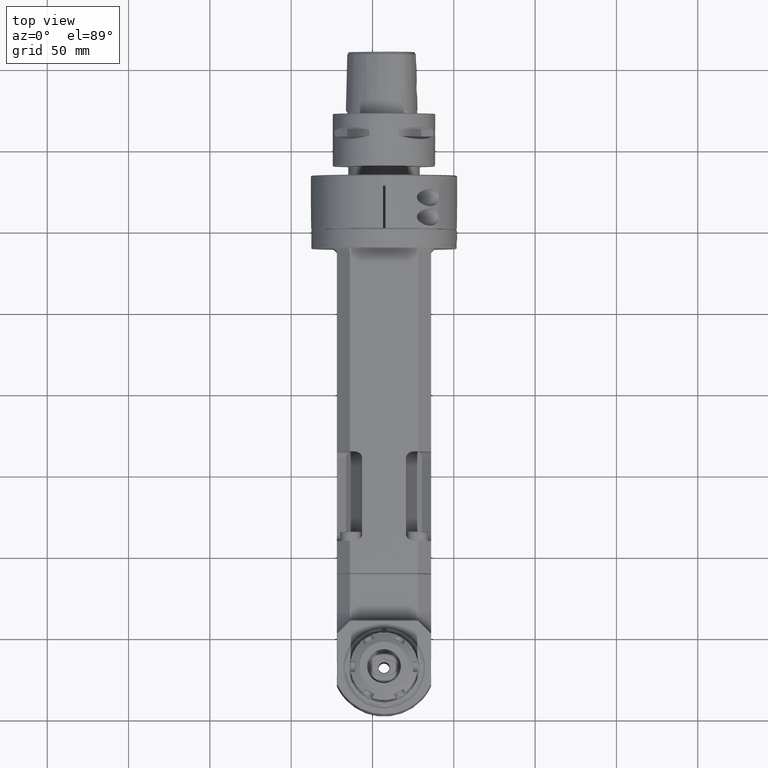
[diagram: clean part render]
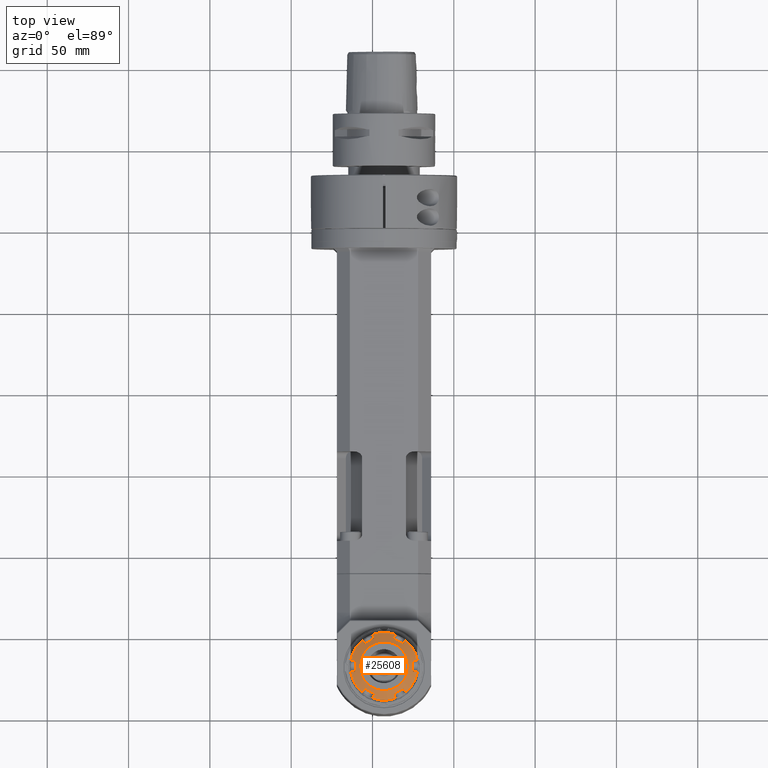
[diagram: same view with one face highlighted and labeled with its STEP entity id]
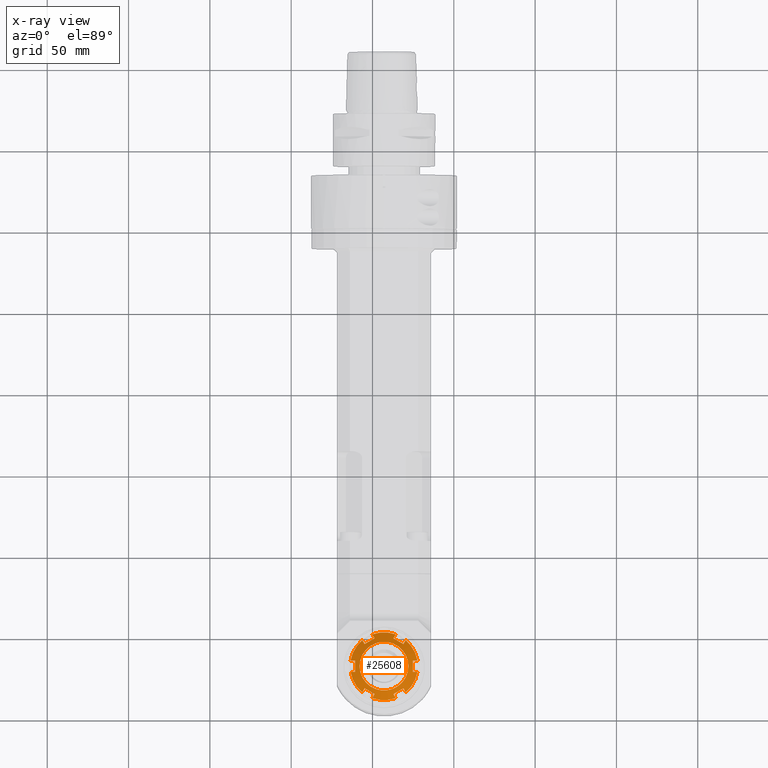
[diagram: x-ray of the same camera — body ghosted, the highlighted face saturated]
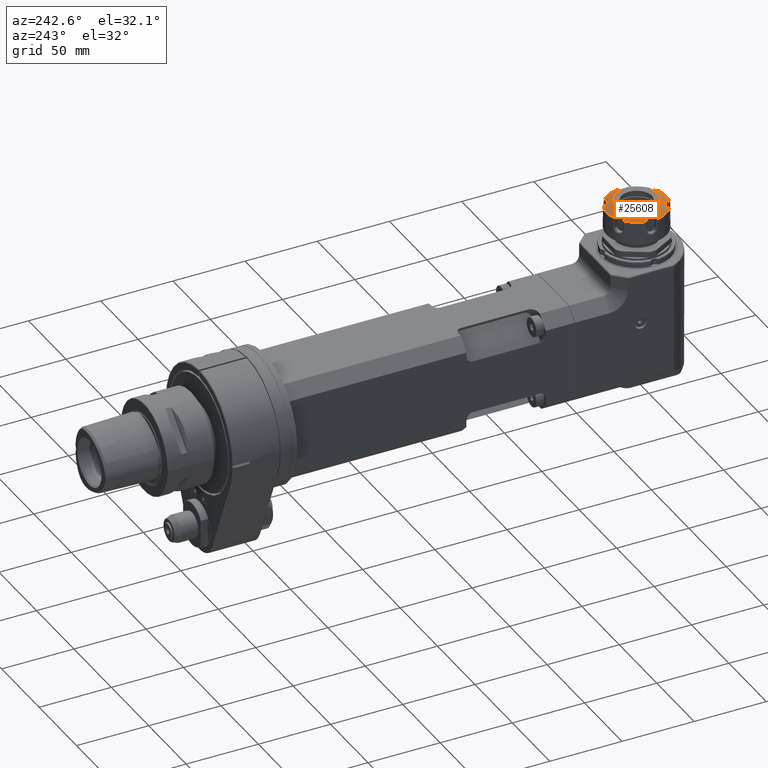
[diagram: same view with one face highlighted and labeled with its STEP entity id]
A machine part, top view. The second image highlights one B-rep face of the part: STEP entity #25608.
The next image is the same camera in x-ray: the body ghosted, the highlighted face saturated — about 0% of this face is hidden behind the body in this view.
A second angle (auxiliary view) of the same face is appended — the face is thin or edge-on in the first view.
In plain terms, the highlighted conical surface has half-angle 60 deg.
Its self-contained STEP definition (entity closure, byte-faithful):
#357=(
BOUNDED_CURVE()
B_SPLINE_CURVE(2,(#44121,#44122,#44123),.UNSPECIFIED.,.F.,.F.)
B_SPLINE_CURVE_WITH_KNOTS((3,3),(5.70939541777021,5.71480727411025),
 .UNSPECIFIED.)
CURVE()
GEOMETRIC_REPRESENTATION_ITEM()
RATIONAL_B_SPLINE_CURVE((1.38705520009317,1.38617916635966,1.38530112410136))
REPRESENTATION_ITEM('')
);
#358=(
BOUNDED_CURVE()
B_SPLINE_CURVE(2,(#44127,#44128,#44129),.UNSPECIFIED.,.F.,.F.)
B_SPLINE_CURVE_WITH_KNOTS((3,3),(0.983136933448719,0.988548446117283),
 .UNSPECIFIED.)
CURVE()
GEOMETRIC_REPRESENTATION_ITEM()
RATIONAL_B_SPLINE_CURVE((1.38530112341754,1.38617910991716,1.38705508814709))
REPRESENTATION_ITEM('')
);
#359=(
BOUNDED_CURVE()
B_SPLINE_CURVE(2,(#44156,#44157,#44158),.UNSPECIFIED.,.F.,.F.)
B_SPLINE_CURVE_WITH_KNOTS((3,3),(5.70939569852921,5.71480726945877),
 .UNSPECIFIED.)
CURVE()
GEOMETRIC_REPRESENTATION_ITEM()
RATIONAL_B_SPLINE_CURVE((1.38705510692146,1.38617911928225,1.3853011233301))
REPRESENTATION_ITEM('')
);
#360=(
BOUNDED_CURVE()
B_SPLINE_CURVE(2,(#44162,#44163,#44164),.UNSPECIFIED.,.F.,.F.)
B_SPLINE_CURVE_WITH_KNOTS((3,3),(0.983136932263362,0.988548410212522),
 .UNSPECIFIED.)
CURVE()
GEOMETRIC_REPRESENTATION_ITEM()
RATIONAL_B_SPLINE_CURVE((1.3853011229098,1.38617910377642,1.38705507639911))
REPRESENTATION_ITEM('')
);
#361=(
BOUNDED_CURVE()
B_SPLINE_CURVE(2,(#44191,#44192,#44193),.UNSPECIFIED.,.F.,.F.)
B_SPLINE_CURVE_WITH_KNOTS((3,3),(5.70939596718502,5.7148072706739),
 .UNSPECIFIED.)
CURVE()
GEOMETRIC_REPRESENTATION_ITEM()
RATIONAL_B_SPLINE_CURVE((1.38705502054067,1.38617907609367,1.38530112353224))
REPRESENTATION_ITEM('')
);
#362=(
BOUNDED_CURVE()
B_SPLINE_CURVE(2,(#44197,#44198,#44199),.UNSPECIFIED.,.F.,.F.)
B_SPLINE_CURVE_WITH_KNOTS((3,3),(0.983136935438427,0.988548413391495),
 .UNSPECIFIED.)
CURVE()
GEOMETRIC_REPRESENTATION_ITEM()
RATIONAL_B_SPLINE_CURVE((1.38530112426497,1.38617910513215,1.38705507775541))
REPRESENTATION_ITEM('')
);
#363=(
BOUNDED_CURVE()
B_SPLINE_CURVE(2,(#44229,#44230,#44231),.UNSPECIFIED.,.F.,.F.)
B_SPLINE_CURVE_WITH_KNOTS((3,3),(-0.988548309295833,-0.983136935087002),
 .UNSPECIFIED.)
CURVE()
GEOMETRIC_REPRESENTATION_ITEM()
RATIONAL_B_SPLINE_CURVE((1.38705504402038,1.38617908815201,1.38530112411672))
REPRESENTATION_ITEM('')
);
#364=(
BOUNDED_CURVE()
B_SPLINE_CURVE(2,(#44235,#44236,#44237),.UNSPECIFIED.,.F.,.F.)
B_SPLINE_CURVE_WITH_KNOTS((3,3),(0.983136933448722,0.988548446117286),
 .UNSPECIFIED.)
CURVE()
GEOMETRIC_REPRESENTATION_ITEM()
RATIONAL_B_SPLINE_CURVE((1.38530112341754,1.38617910991716,1.38705508814709))
REPRESENTATION_ITEM('')
);
#365=(
BOUNDED_CURVE()
B_SPLINE_CURVE(2,(#44264,#44265,#44266),.UNSPECIFIED.,.F.,.F.)
B_SPLINE_CURVE_WITH_KNOTS((3,3),(5.70939579745378,5.71480726945876),
 .UNSPECIFIED.)
CURVE()
GEOMETRIC_REPRESENTATION_ITEM()
RATIONAL_B_SPLINE_CURVE((1.38705507489501,1.38617910323232,1.38530112333011))
REPRESENTATION_ITEM('')
);
#366=(
BOUNDED_CURVE()
B_SPLINE_CURVE(2,(#44270,#44271,#44272),.UNSPECIFIED.,.F.,.F.)
B_SPLINE_CURVE_WITH_KNOTS((3,3),(0.983136932263368,0.98854841021252),
 .UNSPECIFIED.)
CURVE()
GEOMETRIC_REPRESENTATION_ITEM()
RATIONAL_B_SPLINE_CURVE((1.3853011229098,1.38617910377642,1.38705507639911))
REPRESENTATION_ITEM('')
);
#367=(
BOUNDED_CURVE()
B_SPLINE_CURVE(2,(#44299,#44300,#44301),.UNSPECIFIED.,.F.,.F.)
B_SPLINE_CURVE_WITH_KNOTS((3,3),(5.70939579867007,5.71480727067392),
 .UNSPECIFIED.)
CURVE()
GEOMETRIC_REPRESENTATION_ITEM()
RATIONAL_B_SPLINE_CURVE((1.38705507509675,1.38617910343425,1.38530112353223))
REPRESENTATION_ITEM('')
);
#368=(
BOUNDED_CURVE()
B_SPLINE_CURVE(2,(#44305,#44306,#44307),.UNSPECIFIED.,.F.,.F.)
B_SPLINE_CURVE_WITH_KNOTS((3,3),(0.983136935438424,0.98854841339149),
 .UNSPECIFIED.)
CURVE()
GEOMETRIC_REPRESENTATION_ITEM()
RATIONAL_B_SPLINE_CURVE((1.38530112426498,1.38617910513215,1.38705507775541))
REPRESENTATION_ITEM('')
);
#1286=CONICAL_SURFACE('',#27620,17.925,1.0471975511966);
#1846=B_SPLINE_CURVE_WITH_KNOTS('',3,(#44107,#44108,#44109,#44110,#44111,
#44112),.UNSPECIFIED.,.F.,.F.,(4,2,4),(1.14375153860576E-6,0.179910383429149,
0.355926342050331),.UNSPECIFIED.);
#1847=B_SPLINE_CURVE_WITH_KNOTS('',3,(#44114,#44115,#44116,#44117,#44118,
#44119),.UNSPECIFIED.,.F.,.F.,(4,2,4),(8.81207047935609E-6,0.161407624822591,
0.317184349461019),.UNSPECIFIED.);
#1848=B_SPLINE_CURVE_WITH_KNOTS('',3,(#44131,#44132,#44133,#44134,#44135,
#44136),.UNSPECIFIED.,.F.,.F.,(4,2,4),(9.99999962826911E-7,0.154867093347387,
0.315885764028571),.UNSPECIFIED.);
#1849=B_SPLINE_CURVE_WITH_KNOTS('',3,(#44138,#44139,#44140,#44141,#44142,
#44143,#44144,#44145,#44146,#44147),.UNSPECIFIED.,.F.,.F.,(4,2,2,2,4),(6.92223744810711E-6,
0.178809486688371,0.355603981512874,0.53169273900508,0.711222387432045),
 .UNSPECIFIED.);
#1850=B_SPLINE_CURVE_WITH_KNOTS('',3,(#44149,#44150,#44151,#44152,#44153,
#44154),.UNSPECIFIED.,.F.,.F.,(4,2,4),(3.03279531370215E-7,0.161653604121978,
0.317218719665192),.UNSPECIFIED.);
#1851=B_SPLINE_CURVE_WITH_KNOTS('',3,(#44166,#44167,#44168,#44169,#44170,
#44171),.UNSPECIFIED.,.F.,.F.,(4,2,4),(9.99999957859794E-7,0.154834427717964,
0.315881929483001),.UNSPECIFIED.);
#1852=B_SPLINE_CURVE_WITH_KNOTS('',3,(#44173,#44174,#44175,#44176,#44177,
#44178,#44179,#44180,#44181,#44182),.UNSPECIFIED.,.F.,.F.,(4,2,2,2,4),(1.00662982158479E-5,
0.179957851512204,0.356455199662112,0.533654527475972,0.712877035619748),
 .UNSPECIFIED.);
#1853=B_SPLINE_CURVE_WITH_KNOTS('',3,(#44184,#44185,#44186,#44187,#44188,
#44189),.UNSPECIFIED.,.F.,.F.,(4,2,4),(4.20002389914939E-6,0.161873464104651,
0.317243653025037),.UNSPECIFIED.);
#1854=B_SPLINE_CURVE_WITH_KNOTS('',3,(#44201,#44202,#44203,#44204,#44205,
#44206),.UNSPECIFIED.,.F.,.F.,(4,2,4),(9.99999962586484E-7,0.154834278991024,
0.31586918147058),.UNSPECIFIED.);
#1855=B_SPLINE_CURVE_WITH_KNOTS('',3,(#44208,#44209,#44210,#44211,#44212,
#44213),.UNSPECIFIED.,.F.,.F.,(4,2,4),(7.37356202526217E-6,0.176677353733529,
0.35585008997588),.UNSPECIFIED.);
#1856=B_SPLINE_CURVE_WITH_KNOTS('',3,(#44215,#44216,#44217,#44218,#44219,
#44220),.UNSPECIFIED.,.F.,.F.,(4,2,4),(1.14375116578461E-6,0.179910311923236,
0.355926048339165),.UNSPECIFIED.);
#1857=B_SPLINE_CURVE_WITH_KNOTS('',3,(#44222,#44223,#44224,#44225,#44226,
#44227),.UNSPECIFIED.,.F.,.F.,(4,2,4),(8.79176471706862E-6,0.161813928260173,
0.317235617479427),.UNSPECIFIED.);
#1858=B_SPLINE_CURVE_WITH_KNOTS('',3,(#44239,#44240,#44241,#44242,#44243,
#44244),.UNSPECIFIED.,.F.,.F.,(4,2,4),(9.99999957048605E-7,0.15486760308666,
0.315885764034301),.UNSPECIFIED.);
#1859=B_SPLINE_CURVE_WITH_KNOTS('',3,(#44246,#44247,#44248,#44249,#44250,
#44251,#44252,#44253,#44254,#44255),.UNSPECIFIED.,.F.,.F.,(4,2,2,2,4),(6.92223747908899E-6,
0.178809479762374,0.355603967703132,0.53169273445983,0.711222336652775),
 .UNSPECIFIED.);
#1860=B_SPLINE_CURVE_WITH_KNOTS('',3,(#44257,#44258,#44259,#44260,#44261,
#44262),.UNSPECIFIED.,.F.,.F.,(4,2,4),(3.24168874490214E-7,0.161736173456584,
0.317229356150221),.UNSPECIFIED.);
#1861=B_SPLINE_CURVE_WITH_KNOTS('',3,(#44274,#44275,#44276,#44277,#44278,
#44279),.UNSPECIFIED.,.F.,.F.,(4,2,4),(9.99999966948027E-7,0.154833917855417,
0.315881929440825),.UNSPECIFIED.);
#1862=B_SPLINE_CURVE_WITH_KNOTS('',3,(#44281,#44282,#44283,#44284,#44285,
#44286,#44287,#44288,#44289,#44290),.UNSPECIFIED.,.F.,.F.,(4,2,2,2,4),(1.00662982145405E-5,
0.179957863475221,0.3564552231601,0.533654528610631,0.712877122017822),
 .UNSPECIFIED.);
#1863=B_SPLINE_CURVE_WITH_KNOTS('',3,(#44292,#44293,#44294,#44295,#44296,
#44297),.UNSPECIFIED.,.F.,.F.,(4,2,4),(4.15166819956952E-6,0.161732285258469,
0.317225245341145),.UNSPECIFIED.);
#1864=B_SPLINE_CURVE_WITH_KNOTS('',3,(#44309,#44310,#44311,#44312,#44313,
#44314),.UNSPECIFIED.,.F.,.F.,(4,2,4),(9.99999961472123E-7,0.154834788794399,
0.315869181453126),.UNSPECIFIED.);
#1865=B_SPLINE_CURVE_WITH_KNOTS('',3,(#44315,#44316,#44317,#44318,#44319,
#44320),.UNSPECIFIED.,.F.,.F.,(4,2,4),(7.37356203564457E-6,0.176677353733487,
0.355850089975761),.UNSPECIFIED.);
#2888=FACE_OUTER_BOUND('',#4509,.T.);
#4509=EDGE_LOOP('',(#20926,#20927,#20928,#20929,#20930,#20931,#20932,#20933,
#20934,#20935,#20936,#20937,#20938,#20939,#20940,#20941,#20942,#20943,#20944,
#20945,#20946,#20947,#20948,#20949,#20950,#20951,#20952,#20953,#20954,#20955,
#20956,#20957,#20958,#20959,#20960,#20961,#20962,#20963,#20964,#20965,#20966));
#5901=CIRCLE('',#27619,15.);
#5902=CIRCLE('',#27621,20.85);
#5903=CIRCLE('',#27622,20.85);
#5904=CIRCLE('',#27623,20.85);
#5905=CIRCLE('',#27624,20.85);
#5906=CIRCLE('',#27625,20.85);
#5907=CIRCLE('',#27626,20.85);
#7626=LINE('',#44321,#9664);
#9664=VECTOR('',#32492,17.925);
#11871=VERTEX_POINT('',#44102);
#11872=VERTEX_POINT('',#44105);
#11873=VERTEX_POINT('',#44106);
#11874=VERTEX_POINT('',#44113);
#11875=VERTEX_POINT('',#44120);
#11876=VERTEX_POINT('',#44124);
#11877=VERTEX_POINT('',#44126);
#11878=VERTEX_POINT('',#44130);
#11879=VERTEX_POINT('',#44137);
#11880=VERTEX_POINT('',#44148);
#11881=VERTEX_POINT('',#44155);
#11882=VERTEX_POINT('',#44159);
#11883=VERTEX_POINT('',#44161);
#11884=VERTEX_POINT('',#44165);
#11885=VERTEX_POINT('',#44172);
#11886=VERTEX_POINT('',#44183);
#11887=VERTEX_POINT('',#44190);
#11888=VERTEX_POINT('',#44194);
#11889=VERTEX_POINT('',#44196);
#11890=VERTEX_POINT('',#44200);
#11891=VERTEX_POINT('',#44207);
#11892=VERTEX_POINT('',#44214);
#11893=VERTEX_POINT('',#44221);
#11894=VERTEX_POINT('',#44228);
#11895=VERTEX_POINT('',#44232);
#11896=VERTEX_POINT('',#44234);
#11897=VERTEX_POINT('',#44238);
#11898=VERTEX_POINT('',#44245);
#11899=VERTEX_POINT('',#44256);
#11900=VERTEX_POINT('',#44263);
#11901=VERTEX_POINT('',#44267);
#11902=VERTEX_POINT('',#44269);
#11903=VERTEX_POINT('',#44273);
#11904=VERTEX_POINT('',#44280);
#11905=VERTEX_POINT('',#44291);
#11906=VERTEX_POINT('',#44298);
#11907=VERTEX_POINT('',#44302);
#11908=VERTEX_POINT('',#44304);
#11909=VERTEX_POINT('',#44308);
#15077=EDGE_CURVE('',#11871,#11871,#5901,.T.);
#15078=EDGE_CURVE('',#11872,#11873,#1846,.T.);
#15079=EDGE_CURVE('',#11873,#11874,#1847,.T.);
#15080=EDGE_CURVE('',#11874,#11875,#357,.T.);
#15081=EDGE_CURVE('',#11875,#11876,#5902,.T.);
#15082=EDGE_CURVE('',#11876,#11877,#358,.T.);
#15083=EDGE_CURVE('',#11877,#11878,#1848,.T.);
#15084=EDGE_CURVE('',#11878,#11879,#1849,.T.);
#15085=EDGE_CURVE('',#11879,#11880,#1850,.T.);
#15086=EDGE_CURVE('',#11880,#11881,#359,.T.);
#15087=EDGE_CURVE('',#11881,#11882,#5903,.T.);
#15088=EDGE_CURVE('',#11882,#11883,#360,.T.);
#15089=EDGE_CURVE('',#11883,#11884,#1851,.T.);
#15090=EDGE_CURVE('',#11884,#11885,#1852,.T.);
#15091=EDGE_CURVE('',#11885,#11886,#1853,.T.);
#15092=EDGE_CURVE('',#11886,#11887,#361,.T.);
#15093=EDGE_CURVE('',#11887,#11888,#5904,.T.);
#15094=EDGE_CURVE('',#11888,#11889,#362,.T.);
#15095=EDGE_CURVE('',#11889,#11890,#1854,.T.);
#15096=EDGE_CURVE('',#11890,#11891,#1855,.T.);
#15097=EDGE_CURVE('',#11891,#11892,#1856,.T.);
#15098=EDGE_CURVE('',#11892,#11893,#1857,.T.);
#15099=EDGE_CURVE('',#11893,#11894,#363,.T.);
#15100=EDGE_CURVE('',#11895,#11894,#5905,.T.);
#15101=EDGE_CURVE('',#11895,#11896,#364,.T.);
#15102=EDGE_CURVE('',#11896,#11897,#1858,.T.);
#15103=EDGE_CURVE('',#11897,#11898,#1859,.T.);
#15104=EDGE_CURVE('',#11898,#11899,#1860,.T.);
#15105=EDGE_CURVE('',#11899,#11900,#365,.T.);
#15106=EDGE_CURVE('',#11901,#11900,#5906,.T.);
#15107=EDGE_CURVE('',#11901,#11902,#366,.T.);
#15108=EDGE_CURVE('',#11902,#11903,#1861,.T.);
#15109=EDGE_CURVE('',#11903,#11904,#1862,.T.);
#15110=EDGE_CURVE('',#11904,#11905,#1863,.T.);
#15111=EDGE_CURVE('',#11905,#11906,#367,.T.);
#15112=EDGE_CURVE('',#11907,#11906,#5907,.T.);
#15113=EDGE_CURVE('',#11907,#11908,#368,.T.);
#15114=EDGE_CURVE('',#11908,#11909,#1864,.T.);
#15115=EDGE_CURVE('',#11909,#11872,#1865,.T.);
#15116=EDGE_CURVE('',#11872,#11871,#7626,.T.);
#20926=ORIENTED_EDGE('',*,*,#15078,.T.);
#20927=ORIENTED_EDGE('',*,*,#15079,.T.);
#20928=ORIENTED_EDGE('',*,*,#15080,.T.);
#20929=ORIENTED_EDGE('',*,*,#15081,.T.);
#20930=ORIENTED_EDGE('',*,*,#15082,.T.);
#20931=ORIENTED_EDGE('',*,*,#15083,.T.);
#20932=ORIENTED_EDGE('',*,*,#15084,.T.);
#20933=ORIENTED_EDGE('',*,*,#15085,.T.);
#20934=ORIENTED_EDGE('',*,*,#15086,.T.);
#20935=ORIENTED_EDGE('',*,*,#15087,.T.);
#20936=ORIENTED_EDGE('',*,*,#15088,.T.);
#20937=ORIENTED_EDGE('',*,*,#15089,.T.);
#20938=ORIENTED_EDGE('',*,*,#15090,.T.);
#20939=ORIENTED_EDGE('',*,*,#15091,.T.);
#20940=ORIENTED_EDGE('',*,*,#15092,.T.);
#20941=ORIENTED_EDGE('',*,*,#15093,.T.);
#20942=ORIENTED_EDGE('',*,*,#15094,.T.);
#20943=ORIENTED_EDGE('',*,*,#15095,.T.);
#20944=ORIENTED_EDGE('',*,*,#15096,.T.);
#20945=ORIENTED_EDGE('',*,*,#15097,.T.);
#20946=ORIENTED_EDGE('',*,*,#15098,.T.);
#20947=ORIENTED_EDGE('',*,*,#15099,.T.);
#20948=ORIENTED_EDGE('',*,*,#15100,.F.);
#20949=ORIENTED_EDGE('',*,*,#15101,.T.);
#20950=ORIENTED_EDGE('',*,*,#15102,.T.);
#20951=ORIENTED_EDGE('',*,*,#15103,.T.);
#20952=ORIENTED_EDGE('',*,*,#15104,.T.);
#20953=ORIENTED_EDGE('',*,*,#15105,.T.);
#20954=ORIENTED_EDGE('',*,*,#15106,.F.);
#20955=ORIENTED_EDGE('',*,*,#15107,.T.);
#20956=ORIENTED_EDGE('',*,*,#15108,.T.);
#20957=ORIENTED_EDGE('',*,*,#15109,.T.);
#20958=ORIENTED_EDGE('',*,*,#15110,.T.);
#20959=ORIENTED_EDGE('',*,*,#15111,.T.);
#20960=ORIENTED_EDGE('',*,*,#15112,.F.);
#20961=ORIENTED_EDGE('',*,*,#15113,.T.);
#20962=ORIENTED_EDGE('',*,*,#15114,.T.);
#20963=ORIENTED_EDGE('',*,*,#15115,.T.);
#20964=ORIENTED_EDGE('',*,*,#15116,.T.);
#20965=ORIENTED_EDGE('',*,*,#15077,.F.);
#20966=ORIENTED_EDGE('',*,*,#15116,.F.);
#25608=ADVANCED_FACE('',(#2888),#1286,.T.);
#27619=AXIS2_PLACEMENT_3D('',#44103,#32476,#32477);
#27620=AXIS2_PLACEMENT_3D('',#44104,#32478,#32479);
#27621=AXIS2_PLACEMENT_3D('',#44125,#32480,#32481);
#27622=AXIS2_PLACEMENT_3D('',#44160,#32482,#32483);
#27623=AXIS2_PLACEMENT_3D('',#44195,#32484,#32485);
#27624=AXIS2_PLACEMENT_3D('',#44233,#32486,#32487);
#27625=AXIS2_PLACEMENT_3D('',#44268,#32488,#32489);
#27626=AXIS2_PLACEMENT_3D('',#44303,#32490,#32491);
#32476=DIRECTION('center_axis',(0.,0.,1.));
#32477=DIRECTION('ref_axis',(-1.,0.,0.));
#32478=DIRECTION('center_axis',(0.,0.,-1.));
#32479=DIRECTION('ref_axis',(1.,0.,0.));
#32480=DIRECTION('center_axis',(0.,0.,1.));
#32481=DIRECTION('ref_axis',(-0.985098665484215,-0.171990171990203,0.));
#32482=DIRECTION('center_axis',(0.,0.,1.));
#32483=DIRECTION('ref_axis',(-0.343601474597386,-0.939115555538562,0.));
#32484=DIRECTION('center_axis',(0.,0.,1.));
#32485=DIRECTION('ref_axis',(0.64149719088688,-0.767125383548376,0.));
#32486=DIRECTION('center_axis',(0.,0.,-1.));
#32487=DIRECTION('ref_axis',(0.64149719088688,0.767125383548376,0.));
#32488=DIRECTION('center_axis',(0.,0.,-1.));
#32489=DIRECTION('ref_axis',(-0.343601474597386,0.939115555538562,0.));
#32490=DIRECTION('center_axis',(0.,0.,-1.));
#32491=DIRECTION('ref_axis',(-0.985098665484215,0.171990171990203,0.));
#32492=DIRECTION('',(0.866025403784439,-1.06057523872491E-16,0.5));
#44102=CARTESIAN_POINT('',(-15.,-270.,81.5));
#44103=CARTESIAN_POINT('Origin',(1.07769018325E-14,-270.,81.5));
#44104=CARTESIAN_POINT('Origin',(1.098371400405E-14,-270.,79.81125046262));
#44105=CARTESIAN_POINT('',(-17.7499759302508,-269.999999999377,79.9122952022875));
#44106=CARTESIAN_POINT('',(-17.7451938323253,-273.548982385897,79.7121731917694));
#44107=CARTESIAN_POINT('Ctrl Pts',(-17.7499613073417,-269.999999997554,
79.9123090989449));
#44108=CARTESIAN_POINT('Ctrl Pts',(-17.7498288833303,-270.599697424197,
79.9123855540312));
#44109=CARTESIAN_POINT('Ctrl Pts',(-17.7494570443031,-271.197866956121,
79.8950496231943));
#44110=CARTESIAN_POINT('Ctrl Pts',(-17.7479173420765,-272.382220291498,
79.8270730234195));
#44111=CARTESIAN_POINT('Ctrl Pts',(-17.7467572838113,-272.966025220027,
79.7772939535517));
#44112=CARTESIAN_POINT('Ctrl Pts',(-17.745193833205,-273.548982385802,79.7121731909014));
#44113=CARTESIAN_POINT('',(-20.50285796603,-273.5426307849,78.14751888366));
#44114=CARTESIAN_POINT('Ctrl Pts',(-17.7451938321905,-273.548982385286,
79.7121731915341));
#44115=CARTESIAN_POINT('Ctrl Pts',(-18.2134298997006,-273.547717301738,
79.447229796981));
#44116=CARTESIAN_POINT('Ctrl Pts',(-18.6818084951763,-273.546580073953,
79.1817785715612));
#44117=CARTESIAN_POINT('Ctrl Pts',(-19.6009683606743,-273.544511921059,
78.6601872881725));
#44118=CARTESIAN_POINT('Ctrl Pts',(-20.0531855959071,-273.543571985804,
78.4032539928445));
#44119=CARTESIAN_POINT('Ctrl Pts',(-20.5028579660321,-273.542630784904,
78.1475188836637));
#44120=CARTESIAN_POINT('',(-20.53930717535,-273.585995086,78.12250092524));
#44121=CARTESIAN_POINT('Ctrl Pts',(-20.5028579663332,-273.542630785323,
78.1475188834513));
#44122=CARTESIAN_POINT('Ctrl Pts',(-20.5210636132778,-273.564290381505,
78.1350321422293));
#44123=CARTESIAN_POINT('Ctrl Pts',(-20.5393071756607,-273.585995086388,
78.1225009250223));
#44124=CARTESIAN_POINT('',(-13.37521642999,-285.994564247,78.12250092524));
#44125=CARTESIAN_POINT('Origin',(1.11905261756E-14,-270.,78.12250092524));
#44126=CARTESIAN_POINT('',(-13.31944077521,-285.9846810829,78.14751729878));
#44127=CARTESIAN_POINT('Ctrl Pts',(-13.3752164300037,-285.99456424695,78.1225009252508));
#44128=CARTESIAN_POINT('Ctrl Pts',(-13.3472995947921,-285.989617524864,
78.1350313471928));
#44129=CARTESIAN_POINT('Ctrl Pts',(-13.3194407752228,-285.984681082858,
78.1475172987917));
#44130=CARTESIAN_POINT('',(-11.9460829545996,-283.593260830716,79.7121977921065));
#44131=CARTESIAN_POINT('Ctrl Pts',(-13.319440775182,-285.984681082916,78.1475172987806));
#44132=CARTESIAN_POINT('Ctrl Pts',(-13.0958905622526,-285.595601655536,
78.4027151659492));
#44133=CARTESIAN_POINT('Ctrl Pts',(-12.8709714484372,-285.204158271226,
78.6592187236196));
#44134=CARTESIAN_POINT('Ctrl Pts',(-12.4131198426926,-284.407005792508,
79.1808808538152));
#44135=CARTESIAN_POINT('Ctrl Pts',(-12.1795344619708,-284.000147278113,
79.4467658144961));
#44136=CARTESIAN_POINT('Ctrl Pts',(-11.9460829539059,-283.593260830936,
79.7121977918326));
#44137=CARTESIAN_POINT('',(-5.79903282882767,-287.142181914844,79.7122369600591));
#44138=CARTESIAN_POINT('Ctrl Pts',(-11.946082955016,-283.593260831658,79.7121977910963));
#44139=CARTESIAN_POINT('Ctrl Pts',(-11.4339034121855,-283.890781993714,
79.7783745834987));
#44140=CARTESIAN_POINT('Ctrl Pts',(-10.9209106879298,-284.188357607238,
79.8286775236654));
#44141=CARTESIAN_POINT('Ctrl Pts',(-9.89592391289419,-284.782079205114,
79.8954978074125));
#44142=CARTESIAN_POINT('Ctrl Pts',(-9.3860050485736,-285.076936774964,79.9122757843433));
#44143=CARTESIAN_POINT('Ctrl Pts',(-8.36635974902488,-285.665602279732,
79.9122964511826));
#44144=CARTESIAN_POINT('Ctrl Pts',(-7.85862342439086,-285.958323776902,
79.8956623332215));
#44145=CARTESIAN_POINT('Ctrl Pts',(-6.83231862005144,-286.548947791604,
79.8291637277487));
#44146=CARTESIAN_POINT('Ctrl Pts',(-6.31606425491781,-286.845475238014,
79.7788498433655));
#44147=CARTESIAN_POINT('Ctrl Pts',(-5.79903282835482,-287.142181914197,
79.7122369608455));
#44148=CARTESIAN_POINT('',(-7.183419709326,-289.5273140447,78.14751756747));
#44149=CARTESIAN_POINT('Ctrl Pts',(-5.79903282840986,-287.142181915227,
79.7122369602722));
#44150=CARTESIAN_POINT('Ctrl Pts',(-6.03461732404843,-287.547690920907,
79.4468765157667));
#44151=CARTESIAN_POINT('Ctrl Pts',(-6.27011866498761,-287.953315133962,
79.1810545751041));
#44152=CARTESIAN_POINT('Ctrl Pts',(-6.73154913989954,-288.748405079204,
78.6593910618582));
#44153=CARTESIAN_POINT('Ctrl Pts',(-6.95816064353623,-289.139034199007,
78.4028075235181));
#44154=CARTESIAN_POINT('Ctrl Pts',(-7.18341970933128,-289.527314044692,
78.1475175674632));
#44155=CARTESIAN_POINT('',(-7.164090745355,-289.580559333,78.12250092524));
#44156=CARTESIAN_POINT('Ctrl Pts',(-7.18341970915171,-289.527314045178,
78.1475175672362));
#44157=CARTESIAN_POINT('Ctrl Pts',(-7.17376527989063,-289.553908997195,
78.1350314817738));
#44158=CARTESIAN_POINT('Ctrl Pts',(-7.16409074518535,-289.580559333462,
78.122500925012));
#44159=CARTESIAN_POINT('',(7.164090745355,-289.580559333,78.12250092524));
#44160=CARTESIAN_POINT('Origin',(1.11905261756E-14,-270.,78.12250092524));
#44161=CARTESIAN_POINT('',(7.183419377759,-289.527314958,78.14751713865));
#44162=CARTESIAN_POINT('Ctrl Pts',(7.16409074534201,-289.580559332993,78.1225009252354));
#44163=CARTESIAN_POINT('Ctrl Pts',(7.17376511392989,-289.553909454328,78.13503126684));
#44164=CARTESIAN_POINT('Ctrl Pts',(7.18341937776339,-289.527314958012,78.1475171386716));
#44165=CARTESIAN_POINT('',(5.79903316236093,-287.142181886593,79.7122369138036));
#44166=CARTESIAN_POINT('Ctrl Pts',(7.18341937774181,-289.527314958023,78.1475171386698));
#44167=CARTESIAN_POINT('Ctrl Pts',(6.95828832777506,-289.139255389534,78.4026622189958));
#44168=CARTESIAN_POINT('Ctrl Pts',(6.73178870180362,-288.748817780513,78.6591199662732));
#44169=CARTESIAN_POINT('Ctrl Pts',(6.27034144960339,-287.9536974002,79.1808039090986));
#44170=CARTESIAN_POINT('Ctrl Pts',(6.03473619031009,-287.547894178556,79.4467433606995));
#44171=CARTESIAN_POINT('Ctrl Pts',(5.79903316194471,-287.142181886973,79.712236914016));
#44172=CARTESIAN_POINT('',(11.946081811532,-283.593261339585,79.7121980070784));
#44173=CARTESIAN_POINT('Ctrl Pts',(5.79903316188998,-287.142181885948,79.712236914587));
#44174=CARTESIAN_POINT('Ctrl Pts',(6.31606252635284,-286.845476282882,79.7788495856651));
#44175=CARTESIAN_POINT('Ctrl Pts',(6.83231578757826,-286.548949243708,79.8291636681726));
#44176=CARTESIAN_POINT('Ctrl Pts',(7.85862464887955,-285.958323635466,79.8956620865094));
#44177=CARTESIAN_POINT('Ctrl Pts',(8.36636578949273,-285.665599072084,79.912296419112));
#44178=CARTESIAN_POINT('Ctrl Pts',(9.38599318699016,-285.076943246647,79.9122758644178));
#44179=CARTESIAN_POINT('Ctrl Pts',(9.89589467892524,-284.782096035222,79.8954987673561));
#44180=CARTESIAN_POINT('Ctrl Pts',(10.9208788271795,-284.188376188066,79.828680547547));
#44181=CARTESIAN_POINT('Ctrl Pts',(11.4338839936294,-283.890792996853,79.7783771904569));
#44182=CARTESIAN_POINT('Ctrl Pts',(11.9460818119521,-283.593261340535,79.7121980060593));
#44183=CARTESIAN_POINT('',(13.31944292758,-285.9846814643,78.14751633412));
#44184=CARTESIAN_POINT('Ctrl Pts',(11.9460818108323,-283.593261339806,79.7121980068021));
#44185=CARTESIAN_POINT('Ctrl Pts',(12.1797817863406,-284.000581328635,79.4464833112024));
#44186=CARTESIAN_POINT('Ctrl Pts',(12.4135866599833,-284.407820562705,79.1803487713027));
#44187=CARTESIAN_POINT('Ctrl Pts',(12.8714730883755,-285.205029084331,78.6586476510509));
#44188=CARTESIAN_POINT('Ctrl Pts',(13.0961791096828,-285.596098898127,78.4023879670282));
#44189=CARTESIAN_POINT('Ctrl Pts',(13.3194429276037,-285.98468146428,78.1475163341095));
#44190=CARTESIAN_POINT('',(13.37521642999,-285.994564247,78.12250092524));
#44191=CARTESIAN_POINT('Ctrl Pts',(13.3194429280886,-285.984681464361,78.1475163338941));
#44192=CARTESIAN_POINT('Ctrl Pts',(13.3473006737043,-285.989617716069,78.1350308629132));
#44193=CARTESIAN_POINT('Ctrl Pts',(13.3752164304841,-285.994564247062,78.1225009250233));
#44194=CARTESIAN_POINT('',(20.53930717535,-273.585995086,78.12250092524));
#44195=CARTESIAN_POINT('Origin',(1.11905261756E-14,-270.,78.12250092524));
#44196=CARTESIAN_POINT('',(20.50286051025,-273.5426338118,78.14751713865));
#44197=CARTESIAN_POINT('Ctrl Pts',(20.5393071753712,-273.585995085975,78.122500925228));
#44198=CARTESIAN_POINT('Ctrl Pts',(20.5210648877392,-273.564291897687,78.1350312668284));
#44199=CARTESIAN_POINT('Ctrl Pts',(20.5028605102517,-273.542633811802,78.1475171386558));
#44200=CARTESIAN_POINT('',(17.7451928429892,-273.548980094703,79.7121735981616));
#44201=CARTESIAN_POINT('Ctrl Pts',(20.5028605102508,-273.542633811853,78.1475171386512));
#44202=CARTESIAN_POINT('Ctrl Pts',(20.0542278126006,-273.543573231325,78.4026609269551));
#44203=CARTESIAN_POINT('Ctrl Pts',(19.6028427320051,-273.544508870618,78.6591222981255));
#44204=CARTESIAN_POINT('Ctrl Pts',(18.6835655845425,-273.546573631834,79.180783014436));
#44205=CARTESIAN_POINT('Ctrl Pts',(18.2143629860142,-273.547712066541,79.4467021286154));
#44206=CARTESIAN_POINT('Ctrl Pts',(17.7451929960838,-273.548980606595,79.7121738662807));
#44207=CARTESIAN_POINT('',(17.7499768357767,-269.999999997358,79.9122946794819));
#44208=CARTESIAN_POINT('Ctrl Pts',(17.745193941789,-273.548980074522,79.7121733911246));
#44209=CARTESIAN_POINT('Ctrl Pts',(17.7467632610812,-272.963722592893,79.7775512448779));
#44210=CARTESIAN_POINT('Ctrl Pts',(17.7479255999056,-272.377615015293,79.8274657580419));
#44211=CARTESIAN_POINT('Ctrl Pts',(17.7494593187736,-271.19324779711,79.8951837834818));
#44212=CARTESIAN_POINT('Ctrl Pts',(17.7498294196496,-270.597379668389,79.9123852444187));
#44213=CARTESIAN_POINT('Ctrl Pts',(17.7499631183934,-269.999999995916,79.9123080533337));
#44214=CARTESIAN_POINT('',(17.7451928870874,-266.451020510522,79.7121737198024));
#44215=CARTESIAN_POINT('Ctrl Pts',(17.7499613073479,-270.000000002447,79.9123090989413));
#44216=CARTESIAN_POINT('Ctrl Pts',(17.7498288833883,-269.400302814155,79.9123855539977));
#44217=CARTESIAN_POINT('Ctrl Pts',(17.7494570446041,-268.802133518846,79.8950496369906));
#44218=CARTESIAN_POINT('Ctrl Pts',(17.7479173442727,-267.61778115832,79.8270731198154));
#44219=CARTESIAN_POINT('Ctrl Pts',(17.7467572883922,-267.033976963313,79.7772941459574));
#44220=CARTESIAN_POINT('Ctrl Pts',(17.745193841033,-266.451020530653,79.7121735166881));
#44221=CARTESIAN_POINT('',(20.5028612078,-266.4573653583,78.14751666023));
#44222=CARTESIAN_POINT('Ctrl Pts',(17.7451930114343,-266.451020100044,79.7121739376));
#44223=CARTESIAN_POINT('Ctrl Pts',(18.2146064105127,-266.452289322722,79.4465644717731));
#44224=CARTESIAN_POINT('Ctrl Pts',(18.6840231602318,-266.4534277622,79.1805237217966));
#44225=CARTESIAN_POINT('Ctrl Pts',(19.6033317811588,-266.455491373315,78.6588443722712));
#44226=CARTESIAN_POINT('Ctrl Pts',(20.0545115053502,-266.456425943713,78.4024994458687));
#44227=CARTESIAN_POINT('Ctrl Pts',(20.5028612077978,-266.45736535829,78.147516660226));
#44228=CARTESIAN_POINT('',(20.53930717535,-266.414004914,78.12250092524));
#44229=CARTESIAN_POINT('Ctrl Pts',(20.5028612077744,-266.457365358274,78.1475166602378));
#44230=CARTESIAN_POINT('Ctrl Pts',(20.5210652372112,-266.435707686471,78.1350310267747));
#44231=CARTESIAN_POINT('Ctrl Pts',(20.5393071753414,-266.414004913992,78.1225009252417));
#44232=CARTESIAN_POINT('',(13.37521642999,-254.005435753,78.12250092524));
#44233=CARTESIAN_POINT('Origin',(1.11905261756E-14,-270.,78.12250092524));
#44234=CARTESIAN_POINT('',(13.31944077521,-254.0153189171,78.14751729878));
#44235=CARTESIAN_POINT('Ctrl Pts',(13.3752164300037,-254.00543575305,78.1225009252508));
#44236=CARTESIAN_POINT('Ctrl Pts',(13.3472995947921,-254.010382475136,78.1350313471928));
#44237=CARTESIAN_POINT('Ctrl Pts',(13.3194407752228,-254.015318917142,78.1475172987918));
#44238=CARTESIAN_POINT('',(11.9460829545991,-256.406739169284,79.7121977921071));
#44239=CARTESIAN_POINT('Ctrl Pts',(13.3194407751821,-254.015318917084,78.1475172987806));
#44240=CARTESIAN_POINT('Ctrl Pts',(13.0958891356328,-254.404400827434,78.4027167945334));
#44241=CARTESIAN_POINT('Ctrl Pts',(12.870972897861,-254.795839205223,78.6592170721905));
#44242=CARTESIAN_POINT('Ctrl Pts',(12.4131198426933,-255.592994207491,79.1808808538144));
#44243=CARTESIAN_POINT('Ctrl Pts',(12.1795344619736,-255.999852721882,79.446765814493));
#44244=CARTESIAN_POINT('Ctrl Pts',(11.9460829539054,-256.406739169065,79.7121977918332));
#44245=CARTESIAN_POINT('',(5.79903326985309,-252.857818338253,79.7122370168844));
#44246=CARTESIAN_POINT('Ctrl Pts',(11.9460829550155,-256.406739168343,79.7121977910969));
#44247=CARTESIAN_POINT('Ctrl Pts',(11.4339034320247,-256.109218017811,79.7783745809358));
#44248=CARTESIAN_POINT('Ctrl Pts',(10.9209107275925,-255.811642415767,79.828677519776));
#44249=CARTESIAN_POINT('Ctrl Pts',(9.8959239925894,-255.217920841009,79.8954978035017));
#44250=CARTESIAN_POINT('Ctrl Pts',(9.38600514819049,-254.923063282612,79.9122757817247));
#44251=CARTESIAN_POINT('Ctrl Pts',(8.36635984188874,-254.334397773822,79.9122964537897));
#44252=CARTESIAN_POINT('Ctrl Pts',(7.85862349088913,-254.041676261401,79.8956623366764));
#44253=CARTESIAN_POINT('Ctrl Pts',(6.8323187940605,-253.451052308515,79.8291637399009));
#44254=CARTESIAN_POINT('Ctrl Pts',(6.31606456183938,-253.154524938305,79.7788498737023));
#44255=CARTESIAN_POINT('Ctrl Pts',(5.79903326938126,-252.857818338899,79.7122370176692));
#44256=CARTESIAN_POINT('',(7.183419356572,-250.4726849836,78.14751711125));
#44257=CARTESIAN_POINT('Ctrl Pts',(5.79903326943614,-252.857818337871,79.7122370170971));
#44258=CARTESIAN_POINT('Ctrl Pts',(6.03473900481761,-252.452101039402,79.4467402241469));
#44259=CARTESIAN_POINT('Ctrl Pts',(6.27034658621772,-252.046293310277,79.1807978687817));
#44260=CARTESIAN_POINT('Ctrl Pts',(6.73179353039687,-251.251172995439,78.6591140101652));
#44261=CARTESIAN_POINT('Ctrl Pts',(6.95829488593143,-250.860732429028,78.4026543111709));
#44262=CARTESIAN_POINT('Ctrl Pts',(7.18341935656779,-250.472684983594,78.1475171112555));
#44263=CARTESIAN_POINT('',(7.164090745355,-250.419440667,78.12250092524));
#44264=CARTESIAN_POINT('Ctrl Pts',(7.18341935640493,-250.472684983115,78.1475171110283));
#44265=CARTESIAN_POINT('Ctrl Pts',(7.17376510315029,-250.44609051594,78.1350312528579));
#44266=CARTESIAN_POINT('Ctrl Pts',(7.1640907451854,-250.419440666538,78.1225009250121));
#44267=CARTESIAN_POINT('',(-7.164090745355,-250.419440667,78.12250092524));
#44268=CARTESIAN_POINT('Origin',(1.11905261756E-14,-270.,78.12250092524));
#44269=CARTESIAN_POINT('',(-7.183419377759,-250.472685042,78.14751713865));
#44270=CARTESIAN_POINT('Ctrl Pts',(-7.16409074534201,-250.419440667007,
78.1225009252354));
#44271=CARTESIAN_POINT('Ctrl Pts',(-7.17376511392987,-250.446090545672,
78.13503126684));
#44272=CARTESIAN_POINT('Ctrl Pts',(-7.18341937776337,-250.472685041988,
78.1475171386716));
#44273=CARTESIAN_POINT('',(-5.79903316236092,-252.857818113407,79.7122369138036));
#44274=CARTESIAN_POINT('Ctrl Pts',(-7.1834193777418,-250.472685041977,78.1475171386698));
#44275=CARTESIAN_POINT('Ctrl Pts',(-6.95828976467836,-250.860742133669,
78.4026605905274));
#44276=CARTESIAN_POINT('Ctrl Pts',(-6.73178724099619,-251.251184736607,
78.6591216177724));
#44277=CARTESIAN_POINT('Ctrl Pts',(-6.27034144957106,-252.046302599856,
79.1808039091351));
#44278=CARTESIAN_POINT('Ctrl Pts',(-6.03473619029708,-252.452105821466,
79.4467433607141));
#44279=CARTESIAN_POINT('Ctrl Pts',(-5.79903316194469,-252.857818113027,
79.712236914016));
#44280=CARTESIAN_POINT('',(-11.9460825565242,-256.40673909316,79.712197910809));
#44281=CARTESIAN_POINT('Ctrl Pts',(-5.79903316188996,-252.857818114052,
79.7122369145869));
#44282=CARTESIAN_POINT('Ctrl Pts',(-6.31606256071996,-253.154523736852,
79.7788495900989));
#44283=CARTESIAN_POINT('Ctrl Pts',(-6.83231585621842,-253.451050795725,
79.8291636748634));
#44284=CARTESIAN_POINT('Ctrl Pts',(-7.85862478512453,-254.04167644301,79.8956620931381));
#44285=CARTESIAN_POINT('Ctrl Pts',(-8.36636595901394,-254.334401025675,
79.9122964235398));
#44286=CARTESIAN_POINT('Ctrl Pts',(-9.38599332636092,-254.923056833925,
79.9122758599661));
#44287=CARTESIAN_POINT('Ctrl Pts',(-9.89589475456416,-255.217904008584,
79.8954987626815));
#44288=CARTESIAN_POINT('Ctrl Pts',(-10.9208790848484,-255.811623961196,
79.8286805304906));
#44289=CARTESIAN_POINT('Ctrl Pts',(-11.433884494872,-256.109207293907,79.7783771411887));
#44290=CARTESIAN_POINT('Ctrl Pts',(-11.9460825569394,-256.406739092221,
79.712197909802));
#44291=CARTESIAN_POINT('',(-13.31944119363,-254.015318843,78.14751711125));
#44292=CARTESIAN_POINT('Ctrl Pts',(-11.9460825558327,-256.406739092942,
79.712197910536));
#44293=CARTESIAN_POINT('Ctrl Pts',(-12.179579065054,-255.999774421012,79.4467148567268));
#44294=CARTESIAN_POINT('Ctrl Pts',(-12.413204344035,-255.592847108826,79.1807847066689));
#44295=CARTESIAN_POINT('Ctrl Pts',(-12.8710618876065,-254.795685463422,
78.6591160891531));
#44296=CARTESIAN_POINT('Ctrl Pts',(-13.0959457240737,-254.404303916854,
78.4026528947925));
#44297=CARTESIAN_POINT('Ctrl Pts',(-13.3194411936419,-254.015318842999,
78.1475171112613));
#44298=CARTESIAN_POINT('',(-13.37521642999,-254.005435753,78.12250092524));
#44299=CARTESIAN_POINT('Ctrl Pts',(-13.3194411941322,-254.015318842887,
78.1475171110302));
#44300=CARTESIAN_POINT('Ctrl Pts',(-13.3472998049224,-254.010382437875,
78.1350312528644));
#44301=CARTESIAN_POINT('Ctrl Pts',(-13.3752164304843,-254.005435752938,
78.1225009250232));
#44302=CARTESIAN_POINT('',(-20.53930717535,-266.414004914,78.12250092524));
#44303=CARTESIAN_POINT('Origin',(1.11905261756E-14,-270.,78.12250092524));
#44304=CARTESIAN_POINT('',(-20.50286051025,-266.4573661882,78.14751713865));
#44305=CARTESIAN_POINT('Ctrl Pts',(-20.5393071753712,-266.414004914025,
78.122500925228));
#44306=CARTESIAN_POINT('Ctrl Pts',(-20.5210648877391,-266.435708102313,
78.1350312668283));
#44307=CARTESIAN_POINT('Ctrl Pts',(-20.5028605102517,-266.457366188198,
78.1475171386557));
#44308=CARTESIAN_POINT('',(-17.7451928429893,-266.451019905297,79.7121735981616));
#44309=CARTESIAN_POINT('Ctrl Pts',(-20.5028605102508,-266.457366188147,
78.1475171386512));
#44310=CARTESIAN_POINT('Ctrl Pts',(-20.0542249492916,-266.456426762679,
78.4026625553596));
#44311=CARTESIAN_POINT('Ctrl Pts',(-19.6028456423373,-266.455491135918,
78.659120646604));
#44312=CARTESIAN_POINT('Ctrl Pts',(-18.6835655845094,-266.453426368166,
79.1807830144548));
#44313=CARTESIAN_POINT('Ctrl Pts',(-18.2143629860015,-266.452287933459,
79.4467021286225));
#44314=CARTESIAN_POINT('Ctrl Pts',(-17.7451929960839,-266.451019393405,
79.7121738662806));
#44315=CARTESIAN_POINT('Ctrl Pts',(-17.745193941789,-266.451019925478,79.7121733911247));
#44316=CARTESIAN_POINT('Ctrl Pts',(-17.7467632610812,-267.036277407107,
79.7775512448779));
#44317=CARTESIAN_POINT('Ctrl Pts',(-17.7479255999056,-267.622384984707,
79.8274657580419));
#44318=CARTESIAN_POINT('Ctrl Pts',(-17.7494593187736,-268.80675220289,79.8951837834818));
#44319=CARTESIAN_POINT('Ctrl Pts',(-17.7498294196496,-269.402620331612,
79.9123852444187));
#44320=CARTESIAN_POINT('Ctrl Pts',(-17.7499631183934,-270.000000004084,
79.9123080533337));
#44321=CARTESIAN_POINT('',(-17.925,-270.,79.81125046262));